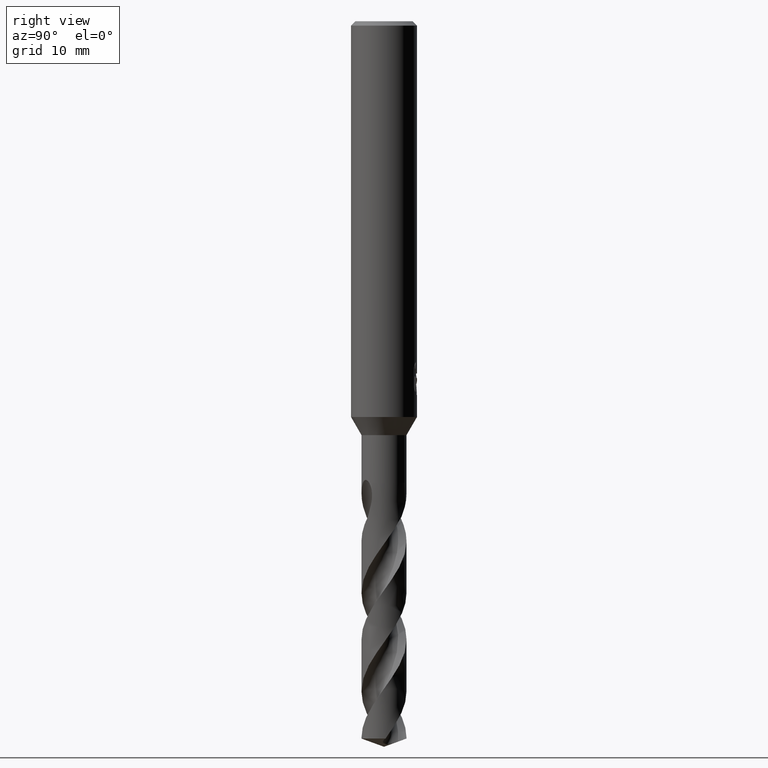
[diagram: clean part render]
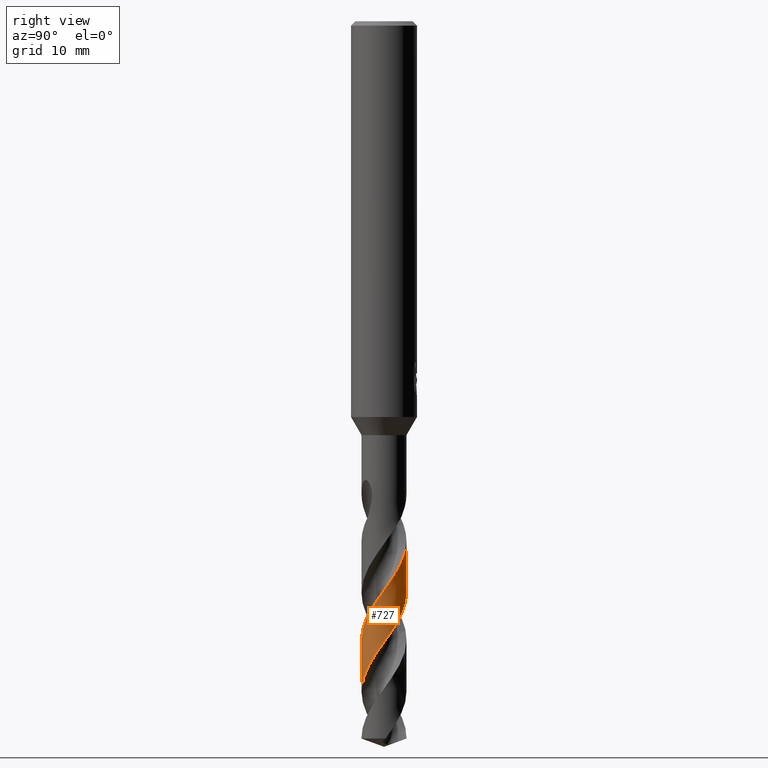
[diagram: same view with one face highlighted and labeled with its STEP entity id]
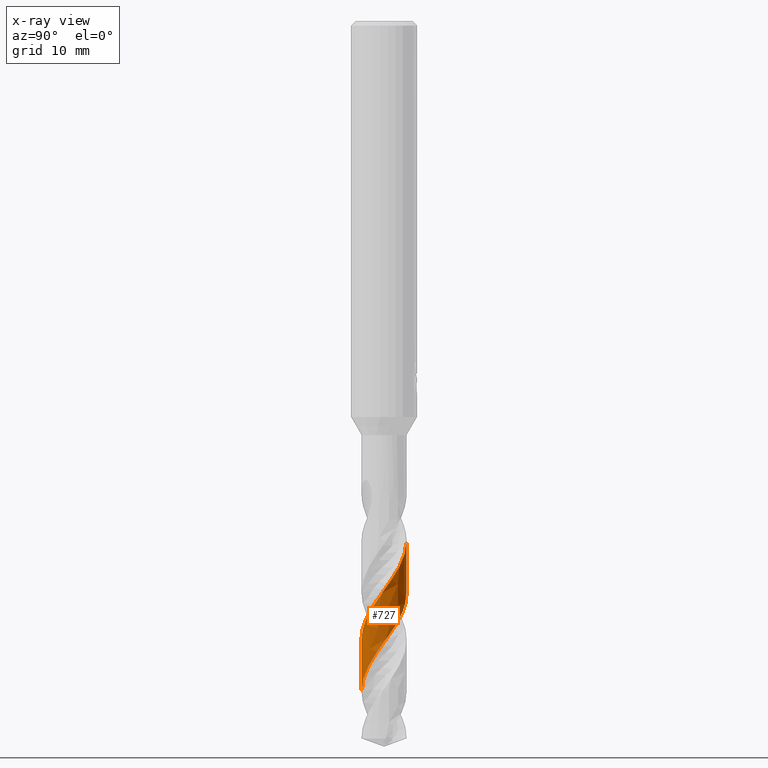
[diagram: x-ray of the same camera — body ghosted, the highlighted face saturated]
A machine part, right view. The second image highlights one B-rep face of the part: STEP entity #727.
The next image is the same camera in x-ray: the body ghosted, the highlighted face saturated — about 0% of this face is hidden behind the body in this view.
In plain terms, the highlighted conical surface has half-angle 0 deg.
Its self-contained STEP definition (entity closure, byte-faithful):
#305=EDGE_CURVE('',#593,#457,#814,.T.);
#457=VERTEX_POINT('',#981);
#473=EDGE_CURVE('',#731,#687,#997,.T.);
#531=EDGE_CURVE('',#731,#457,#1060,.T.);
#593=VERTEX_POINT('',#1126);
#687=VERTEX_POINT('',#1234);
#725=EDGE_CURVE('',#593,#687,#1274,.T.);
#727=ADVANCED_FACE('',(#1276),#1277,.T.);
#731=VERTEX_POINT('',#1281);
#814=LINE('',#1597,#1598);
#981=CARTESIAN_POINT('',(7.04533091023201E-013,2.04994307482472,-52.0165598744449));
#997=LINE('',#2959,#2960);
#1060=B_SPLINE_CURVE_WITH_KNOTS('',3,(#3836,#3837,#3838,#3839,#3840,#3841,#3842,#3843,#3844,#3845,#3846,#3847,#3848,#3849,#3850,#3851,#3852,#3853,#3854,#3855,#3856,#3857,#3858,#3859,#3860,#3861,#3862,#3863,#3864,#3865,#3866,#3867,#3868,#3869,#3870,#3871,#3872,#3873,#3874,#3875,#3876,#3877,#3878,#3879,#3880,#3881,#3882,#3883,#3884,#3885,#3886,#3887,#3888,#3889,#3890,#3891,#3892,#3893,#3894,#3895,#3896,#3897,#3898,#3899,#3900,#3901,#3902,#3903,#3904,#3905,#3906,#3907,#3908,#3909,#3910,#3911,#3912,#3913),.UNSPECIFIED.,.F.,.F.,(4,2,2,2,2,2,2,2,2,2,2,2,2,2,2,2,2,2,2,2,2,2,2,2,2,2,2,2,2,2,2,2,2,2,2,2,2,2,4),(0.0,1.15175627742879,1.80781811592752,3.05240264895701,3.6913750215055,4.15427598464295,5.45175427655156,5.67764594040228,6.48042109522554,6.88336688344574,7.56907475186713,8.22356334129114,9.02589702974429,9.77096868320212,11.0894733277366,11.8117945455709,12.323126113477,13.5699983638302,13.6169720687603,14.4320280051147,15.595138931064,16.2720113707228,17.0758114118382,17.805301288752,18.9718859434726,19.6116695099303,20.3787577381538,21.5421460266207,22.7605480203474,23.1612826828921,23.607076727968,23.9006091642226,24.0701462322376,24.1574432419735,24.1962318677597,24.2392658667535,24.3113545085256,24.4015321312595,24.5307258216989),.UNSPECIFIED.);
#1126=CARTESIAN_POINT('',(-1.55575615064657E-014,2.04992278732748,-47.2989334596052));
#1234=CARTESIAN_POINT('',(-1.85261710741623E-014,-2.0499612763598,-56.2491195461662));
#1274=B_SPLINE_CURVE_WITH_KNOTS('',3,(#5162,#5163,#5164,#5165,#5166,#5167,#5168,#5169,#5170,#5171,#5172,#5173,#5174,#5175,#5176,#5177,#5178,#5179,#5180,#5181,#5182,#5183,#5184,#5185,#5186,#5187,#5188,#5189,#5190,#5191,#5192,#5193,#5194,#5195,#5196,#5197,#5198,#5199,#5200,#5201,#5202,#5203,#5204,#5205,#5206,#5207,#5208,#5209,#5210,#5211,#5212,#5213,#5214,#5215,#5216,#5217,#5218,#5219,#5220,#5221,#5222,#5223,#5224,#5225,#5226,#5227,#5228,#5229,#5230,#5231,#5232,#5233,#5234,#5235,#5236,#5237,#5238,#5239,#5240,#5241,#5242,#5243,#5244,#5245,#5246,#5247,#5248,#5249,#5250,#5251,#5252,#5253,#5254,#5255),.UNSPECIFIED.,.F.,.F.,(4,2,2,2,2,2,2,2,2,2,2,2,2,2,2,2,2,2,2,2,2,2,2,2,2,2,2,2,2,2,2,2,2,2,2,2,2,2,2,2,2,2,2,2,2,2,4),(0.0,0.0962980762194894,0.114948366110361,0.140672366970733,0.17839804350182,0.435789317753636,0.522918851623114,0.577903178521297,0.629015633161534,0.696754934571298,0.772286204870554,0.845245160685556,1.11522515070668,1.29346201423134,1.4725996553559,1.66223906207437,2.16285522669778,2.65056030979907,3.38911020192317,4.26205929948433,5.39575923183234,5.97317129701287,7.05094196982848,7.63028576760828,8.22986479584773,8.93422049498301,10.0992306142561,10.673998551046,11.8241454428145,12.4024752378676,13.4142646526598,13.992287253505,15.0288653472025,15.6072070523937,16.6164463298657,17.1944391133144,18.2338916750781,18.8123222723812,19.4116274917404,20.7260221296511,21.0435644236071,21.7506674710171,22.1194092647895,22.7570194987106,23.7218529075594,24.2099556532641,24.7006841054733),.UNSPECIFIED.);
#1276=FACE_OUTER_BOUND('',#5257,.T.);
#1277=CONICAL_SURFACE('',#5258,2.04995,4.30036112775612E-006);
#1281=CARTESIAN_POINT('',(3.26420123919025E-013,-2.0499815628894,-60.9665209430247));
#1597=CARTESIAN_POINT('',(-2.50926260833186E-016,2.04995,-53.6269305098771));
#1598=VECTOR('',#5418,1.0);
#2959=CARTESIAN_POINT('',(2.51150098170451E-016,-2.04995,-53.6269305098771));
#2960=VECTOR('',#5613,1.0);
#3836=CARTESIAN_POINT('',(-2.04555352503467,-0.134947309044078,-65.2538610197543));
#3837=CARTESIAN_POINT('',(-2.03072277556421,-0.359733942141388,-64.9429838220174));
#3838=CARTESIAN_POINT('',(-1.97902738323713,-0.579748366857734,-64.6288994947812));
#3839=CARTESIAN_POINT('',(-1.84412799498628,-0.904406029599443,-64.140124531374));
#3840=CARTESIAN_POINT('',(-1.78423787802272,-1.01750561224746,-63.9640654672668));
#3841=CARTESIAN_POINT('',(-1.58108330671053,-1.32720275932276,-63.450907846549));
#3842=CARTESIAN_POINT('',(-1.41318472622262,-1.50474716510741,-63.113394378817));
#3843=CARTESIAN_POINT('',(-1.11776570918428,-1.72295565749433,-62.6051456336067));
#3844=CARTESIAN_POINT('',(-1.01121097664757,-1.78753994834266,-62.4336988432284));
#3845=CARTESIAN_POINT('',(-0.818946598190801,-1.88144940861602,-62.1357579257445));
#3846=CARTESIAN_POINT('',(-0.735858645321467,-1.91546901585005,-62.0098867601773));
#3847=CARTESIAN_POINT('',(-0.4119615563588,-2.02388174438662,-61.5338904472028));
#3848=CARTESIAN_POINT('',(-0.161001316791939,-2.05900956522492,-61.1921297419897));
#3849=CARTESIAN_POINT('',(0.133444102063257,-2.04609965401575,-60.7801870597706));
#3850=CARTESIAN_POINT('',(0.176991434137839,-2.04279601095308,-60.7189571355291));
#3851=CARTESIAN_POINT('',(0.375446454893009,-2.02131697784293,-60.4402168809062));
#3852=CARTESIAN_POINT('',(0.528289925242743,-1.98692171175763,-60.2249445553888));
#3853=CARTESIAN_POINT('',(0.750390562936933,-1.90931964725867,-59.899379999942));
#3854=CARTESIAN_POINT('',(0.822937561819568,-1.8791801079398,-59.7907819507555));
#3855=CARTESIAN_POINT('',(1.01348150612861,-1.78690678420368,-59.4963128703144));
#3856=CARTESIAN_POINT('',(1.12752980447647,-1.71724027941726,-59.3094073323651));
#3857=CARTESIAN_POINT('',(1.33598243607017,-1.56006233154454,-58.9468105717481));
#3858=CARTESIAN_POINT('',(1.43047410597743,-1.47391966756064,-58.7709848699866));
#3859=CARTESIAN_POINT('',(1.62175964087642,-1.26363952189004,-58.3772952997485));
#3860=CARTESIAN_POINT('',(1.71324363801814,-1.13641068567738,-58.1589785205338));
#3861=CARTESIAN_POINT('',(1.85984194153287,-0.874227989107782,-57.7406312230343));
#3862=CARTESIAN_POINT('',(1.91698992652252,-0.740666780464255,-57.5410311134163));
#3863=CARTESIAN_POINT('',(2.03503819345977,-0.35632586996814,-56.9844763357967));
#3864=CARTESIAN_POINT('',(2.06362632807088,-0.0989155450933185,-56.6270098893209));
#3865=CARTESIAN_POINT('',(2.03313054637883,0.297528837156363,-56.0765963678558));
#3866=CARTESIAN_POINT('',(2.00794109128657,0.436035788735693,-55.8832301084644));
#3867=CARTESIAN_POINT('',(1.94135487614509,0.665809364705936,-55.5497260764729));
#3868=CARTESIAN_POINT('',(1.90683848513743,0.759074289980742,-55.4104725752885));
#3869=CARTESIAN_POINT('',(1.7650371158266,1.07043510683181,-54.9346146107058));
#3870=CARTESIAN_POINT('',(1.62627707153417,1.27115089439084,-54.6049421812152));
#3871=CARTESIAN_POINT('',(1.44996493018582,1.44913439384099,-54.2541837693857));
#3872=CARTESIAN_POINT('',(1.44353594451964,1.45553857675959,-54.2414658128737));
#3873=CARTESIAN_POINT('',(1.32449658771914,1.57255179224548,-54.0077356383608));
#3874=CARTESIAN_POINT('',(1.19917596450172,1.67019548976799,-53.7890299312295));
#3875=CARTESIAN_POINT('',(0.86925999726725,1.87033482501881,-53.2550983944119));
#3876=CARTESIAN_POINT('',(0.657299021403324,1.95483950144505,-52.939965315221));
#3877=CARTESIAN_POINT('',(0.307693931853025,2.03099078189619,-52.4426604333084));
#3878=CARTESIAN_POINT('',(0.176558035087905,2.04658289426593,-52.2611026334003));
#3879=CARTESIAN_POINT('',(-0.11195515625198,2.05286926866656,-51.8615169554859));
#3880=CARTESIAN_POINT('',(-0.268090890015418,2.03829508748068,-51.6432048792521));
#3881=CARTESIAN_POINT('',(-0.558881842036588,1.97734296305513,-51.2292381522341));
#3882=CARTESIAN_POINT('',(-0.694112791000099,1.93406304093833,-51.0339883107103));
#3883=CARTESIAN_POINT('',(-1.0318850189137,1.78576792120873,-50.523384847953));
#3884=CARTESIAN_POINT('',(-1.22288603228978,1.6607864577981,-50.2071689796961));
#3885=CARTESIAN_POINT('',(-1.4810374613638,1.42275152126434,-49.7203702816907));
#3886=CARTESIAN_POINT('',(-1.56459242476678,1.33031371900745,-49.5491022262067));
#3887=CARTESIAN_POINT('',(-1.72876962461492,1.11166449965726,-49.1700061312084));
#3888=CARTESIAN_POINT('',(-1.80477336427241,0.983383156733932,-48.9616186976859));
#3889=CARTESIAN_POINT('',(-1.95935780694587,0.643279333881824,-48.441284198938));
#3890=CARTESIAN_POINT('',(-2.01812102105236,0.424400564318992,-48.133864257606));
#3891=CARTESIAN_POINT('',(-2.06316192740311,-0.0345121919180032,-47.4927205010888));
#3892=CARTESIAN_POINT('',(-2.04540054186323,-0.270709140818369,-47.1649529471881));
#3893=CARTESIAN_POINT('',(-1.96988929821917,-0.572393191334634,-46.7326777909151));
#3894=CARTESIAN_POINT('',(-1.94687735361697,-0.646489110293952,-46.626048657301));
#3895=CARTESIAN_POINT('',(-1.88891611742375,-0.801075758129618,-46.4018324703939));
#3896=CARTESIAN_POINT('',(-1.85350007048573,-0.879936526790868,-46.2868984504109));
#3897=CARTESIAN_POINT('',(-1.78607107056585,-1.00767096433617,-46.0854379635997));
#3898=CARTESIAN_POINT('',(-1.75775204637482,-1.05615987101648,-46.005166771946));
#3899=CARTESIAN_POINT('',(-1.7112434415247,-1.12907341845278,-45.8762489747742));
#3900=CARTESIAN_POINT('',(-1.69391185604787,-1.15488157184532,-45.8287942593297));
#3901=CARTESIAN_POINT('',(-1.66730310015203,-1.19268752359595,-45.7561418195736));
#3902=CARTESIAN_POINT('',(-1.65415639073447,-1.211183382728,-45.7197987185833));
#3903=CARTESIAN_POINT('',(-1.6260105112278,-1.24837898748149,-45.6504010566672));
#3904=CARTESIAN_POINT('',(-1.61710079604205,-1.25990412926322,-45.629224987165));
#3905=CARTESIAN_POINT('',(-1.59771951406103,-1.2844125610779,-45.5848655595227));
#3906=CARTESIAN_POINT('',(-1.58720204077536,-1.29739421206644,-45.5617581531663));
#3907=CARTESIAN_POINT('',(-1.55811608324629,-1.33238045777127,-45.5004614552106));
#3908=CARTESIAN_POINT('',(-1.53896983322441,-1.35448412556732,-45.4627565936698));
#3909=CARTESIAN_POINT('',(-1.49350747174346,-1.40463523218959,-45.3791438804926));
#3910=CARTESIAN_POINT('',(-1.46672736697274,-1.43263932492308,-45.3337909463075));
#3911=CARTESIAN_POINT('',(-1.3974820627254,-1.50082183939026,-45.2256264395658));
#3912=CARTESIAN_POINT('',(-1.35357347371349,-1.54069873993728,-45.1642712319441));
#3913=CARTESIAN_POINT('',(-1.3062665193908,-1.57981407973263,-45.1046));
#5162=CARTESIAN_POINT('',(-1.42484727417809,1.47375540422082,-45.1046));
#5163=CARTESIAN_POINT('',(-1.41197847281553,1.48619730019442,-45.1312451122644));
#5164=CARTESIAN_POINT('',(-1.39890693754979,1.49850979761065,-45.1578443573427));
#5165=CARTESIAN_POINT('',(-1.38301026704586,1.51308991592007,-45.1895476082318));
#5166=CARTESIAN_POINT('',(-1.38042248797589,1.51545121648082,-45.1946886947863));
#5167=CARTESIAN_POINT('',(-1.37424399180191,1.52105995983751,-45.2069153826607));
#5168=CARTESIAN_POINT('',(-1.37064587386599,1.52430315485598,-45.2139974830818));
#5169=CARTESIAN_POINT('',(-1.36172741531317,1.53228459114989,-45.2314551557966));
#5170=CARTESIAN_POINT('',(-1.35638926137534,1.53701218646956,-45.241820849268));
#5171=CARTESIAN_POINT('',(-1.31432248237978,1.57387572738455,-45.3228381235458));
#5172=CARTESIAN_POINT('',(-1.27649133759554,1.60475650182203,-45.3916892953419));
#5173=CARTESIAN_POINT('',(-1.22285727417541,1.6453147800656,-45.4844669366569));
#5174=CARTESIAN_POINT('',(-1.20912406539569,1.65543482607723,-45.5078380824836));
#5175=CARTESIAN_POINT('',(-1.18641776245858,1.67173034590419,-45.5459393201456));
#5176=CARTESIAN_POINT('',(-1.1775695907654,1.67797507767364,-45.5606566522106));
#5177=CARTESIAN_POINT('',(-1.16036968597716,1.68991041181945,-45.5890467897978));
#5178=CARTESIAN_POINT('',(-1.15203396008528,1.69560413683162,-45.6027084876513));
#5179=CARTESIAN_POINT('',(-1.13253405888029,1.70871297598169,-45.6344759437072));
#5180=CARTESIAN_POINT('',(-1.12134441110318,1.71607709993334,-45.6525611578381));
#5181=CARTESIAN_POINT('',(-1.09752271420683,1.73142199848917,-45.6908388042683));
#5182=CARTESIAN_POINT('',(-1.08489107033689,1.73936450142691,-45.7110050164442));
#5183=CARTESIAN_POINT('',(-1.059921755089,1.75468778098982,-45.7507228285109));
#5184=CARTESIAN_POINT('',(-1.04758888380699,1.76207933345769,-45.7702786572565));
#5185=CARTESIAN_POINT('',(-0.988855835194682,1.79643866379443,-45.8633629469133));
#5186=CARTESIAN_POINT('',(-0.941859662520782,1.82149736827945,-45.9374609112864));
#5187=CARTESIAN_POINT('',(-0.862912871310648,1.85977423966273,-46.0601886944555));
#5188=CARTESIAN_POINT('',(-0.831158007438813,1.87418058294836,-46.1091071759216));
#5189=CARTESIAN_POINT('',(-0.766822403053403,1.90141366415701,-46.2070721791059));
#5190=CARTESIAN_POINT('',(-0.734180278127104,1.91425660429273,-46.2562069793309));
#5191=CARTESIAN_POINT('',(-0.666226929470954,1.93899236941463,-46.3571652371354));
#5192=CARTESIAN_POINT('',(-0.631057620744823,1.95072310005671,-46.4086283824828));
#5193=CARTESIAN_POINT('',(-0.501364815476971,1.99009225024662,-46.5964954703444));
#5194=CARTESIAN_POINT('',(-0.405383537599973,2.01183900585614,-46.7321263415645));
#5195=CARTESIAN_POINT('',(-0.213568140661223,2.04101289050702,-47.0011607880336));
#5196=CARTESIAN_POINT('',(-0.118204314172871,2.04873277576968,-47.1342748393751));
#5197=CARTESIAN_POINT('',(0.121603160283627,2.0514049151734,-47.4683344522011));
#5198=CARTESIAN_POINT('',(0.265871987453117,2.03774829755879,-47.668312877486));
#5199=CARTESIAN_POINT('',(0.575137279830868,1.97500279299276,-48.1069150179562));
#5200=CARTESIAN_POINT('',(0.737854886049391,1.92016958083873,-48.3439047368137));
#5201=CARTESIAN_POINT('',(1.09200751289595,1.74903232708401,-48.8898585489906));
#5202=CARTESIAN_POINT('',(1.2748720632782,1.62052928599194,-49.196501756555));
#5203=CARTESIAN_POINT('',(1.51419178186252,1.38643796502601,-49.6624957875059));
#5204=CARTESIAN_POINT('',(1.58835505023156,1.30083258834155,-49.8193900088996));
#5205=CARTESIAN_POINT('',(1.7797697842973,1.03888559538189,-50.2697090824305));
#5206=CARTESIAN_POINT('',(1.87721862018002,0.850174952839013,-50.5613398331706));
#5207=CARTESIAN_POINT('',(1.9800874552937,0.542551912039566,-51.0125414365468));
#5208=CARTESIAN_POINT('',(2.00709092165391,0.432128811023239,-51.1699157659342));
#5209=CARTESIAN_POINT('',(2.04316248873846,0.203859465313846,-51.490661589794));
#5210=CARTESIAN_POINT('',(2.05147540374693,0.0865067237252568,-51.6532356061581));
#5211=CARTESIAN_POINT('',(2.04763640195462,-0.168703964444323,-52.0083512167803));
#5212=CARTESIAN_POINT('',(2.03165746953339,-0.30608171360559,-52.1999881463504));
#5213=CARTESIAN_POINT('',(1.95288324628994,-0.663804903340118,-52.7089095705743));
#5214=CARTESIAN_POINT('',(1.86691821721774,-0.876867377321776,-53.0231214599504));
#5215=CARTESIAN_POINT('',(1.68896607630128,-1.16719415704052,-53.497044739798));
#5216=CARTESIAN_POINT('',(1.6223366054414,-1.2581787190134,-53.653340064683));
#5217=CARTESIAN_POINT('',(1.40077124456665,-1.51359664021743,-54.1228510920444));
#5218=CARTESIAN_POINT('',(1.22602403014114,-1.65827485846901,-54.4337142369999));
#5219=CARTESIAN_POINT('',(0.933587372448352,-1.82853804999424,-54.9045226775403));
#5220=CARTESIAN_POINT('',(0.831114647893954,-1.87734613882796,-55.0616926824011));
#5221=CARTESIAN_POINT('',(0.539472361193891,-1.98762627257642,-55.4944493810631));
#5222=CARTESIAN_POINT('',(0.344827685388362,-2.03043413223953,-55.7685588304409));
#5223=CARTESIAN_POINT('',(0.0343894954894026,-2.05279400622625,-56.2016043703232));
#5224=CARTESIAN_POINT('',(-0.0790456738277552,-2.05157036189976,-56.3587000342155));
#5225=CARTESIAN_POINT('',(-0.394250973197604,-2.02193710864612,-56.7981275087583));
#5226=CARTESIAN_POINT('',(-0.592519919999751,-1.97293199040401,-57.0788895469221));
#5227=CARTESIAN_POINT('',(-0.884894656111544,-1.85260503757126,-57.5187755455849));
#5228=CARTESIAN_POINT('',(-0.98593141474862,-1.80087936122717,-57.6759512172969));
#5229=CARTESIAN_POINT('',(-1.25031933799031,-1.63653282697592,-58.1080258895796));
#5230=CARTESIAN_POINT('',(-1.40225755505208,-1.50834091295859,-58.3814593672983));
#5231=CARTESIAN_POINT('',(-1.60849535980276,-1.27590503255002,-58.8138120272836));
#5232=CARTESIAN_POINT('',(-1.67651820278157,-1.18512493102457,-58.9709037722029));
#5233=CARTESIAN_POINT('',(-1.84501955320599,-0.916429721788943,-59.4111145969342));
#5234=CARTESIAN_POINT('',(-1.92687320984823,-0.728682751543516,-59.6926533585389));
#5235=CARTESIAN_POINT('',(-2.0091021372179,-0.422780957160365,-60.1333505173428));
#5236=CARTESIAN_POINT('',(-2.02941019238787,-0.311082625155403,-60.290549893156));
#5237=CARTESIAN_POINT('',(-2.05173897942245,-0.0812175863201797,-60.611085824747));
#5238=CARTESIAN_POINT('',(-2.05301498249918,0.0364161514529862,-60.7735922052035));
#5239=CARTESIAN_POINT('',(-2.02496175645547,0.410149399597647,-61.294912967346));
#5240=CARTESIAN_POINT('',(-1.95748118738331,0.661193357803256,-61.6500401892936));
#5241=CARTESIAN_POINT('',(-1.81799914720216,0.949317159722853,-62.0942865801479));
#5242=CARTESIAN_POINT('',(-1.78834265860348,1.00406372120598,-62.1806927704609));
#5243=CARTESIAN_POINT('',(-1.68483948263583,1.17598669354865,-62.4598751483612));
#5244=CARTESIAN_POINT('',(-1.60153575942928,1.28714793039793,-62.6523618624043));
#5245=CARTESIAN_POINT('',(-1.45863561202622,1.44224344646868,-62.9454088747348));
#5246=CARTESIAN_POINT('',(-1.40686084537926,1.49279493281068,-63.0457248919982));
#5247=CARTESIAN_POINT('',(-1.25849972745088,1.62304992450578,-63.3197244229292));
#5248=CARTESIAN_POINT('',(-1.1572210909522,1.69673399885825,-63.4929083198476));
#5249=CARTESIAN_POINT('',(-0.887637717340986,1.85749612914009,-63.9295989306389));
#5250=CARTESIAN_POINT('',(-0.712551510647332,1.93147786691901,-64.1911741302853));
#5251=CARTESIAN_POINT('',(-0.437084929776598,2.00514870691921,-64.5867084765837));
#5252=CARTESIAN_POINT('',(-0.343052306410702,2.02334990289372,-64.7192060488839));
#5253=CARTESIAN_POINT('',(-0.152750287512251,2.04655817432657,-64.9861070220137));
#5254=CARTESIAN_POINT('',(-0.0566661220403326,2.05146700004238,-65.1200048500003));
#5255=CARTESIAN_POINT('',(0.0393904027495815,2.04962152510438,-65.2538610197543));
#5257=EDGE_LOOP('',(#5947,#5948,#5949,#5950));
#5258=AXIS2_PLACEMENT_3D('',#5951,#5952,#5953);
#5418=DIRECTION('',(-5.26624956076468E-022,4.30036112774286E-006,-0.999999999990754));
#5613=DIRECTION('',(-5.26624956076468E-022,4.30036112774286E-006,0.999999999990754));
#5947=ORIENTED_EDGE('',*,*,#305,.F.);
#5948=ORIENTED_EDGE('',*,*,#725,.T.);
#5949=ORIENTED_EDGE('',*,*,#473,.F.);
#5950=ORIENTED_EDGE('',*,*,#531,.T.);
#5951=CARTESIAN_POINT('',(0.0,0.0,-53.6269305098771));
#5952=DIRECTION('',(0.0,-0.0,-1.0));
#5953=DIRECTION('',(0.0,1.0,0.0));